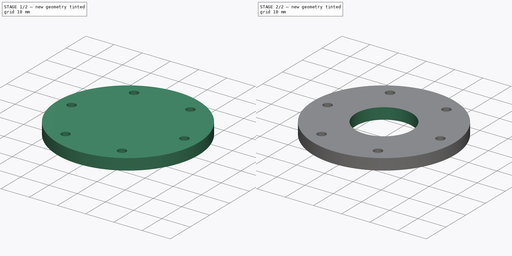
[diagram: build sequence overview — one tinted view per stage of 2, left to right]
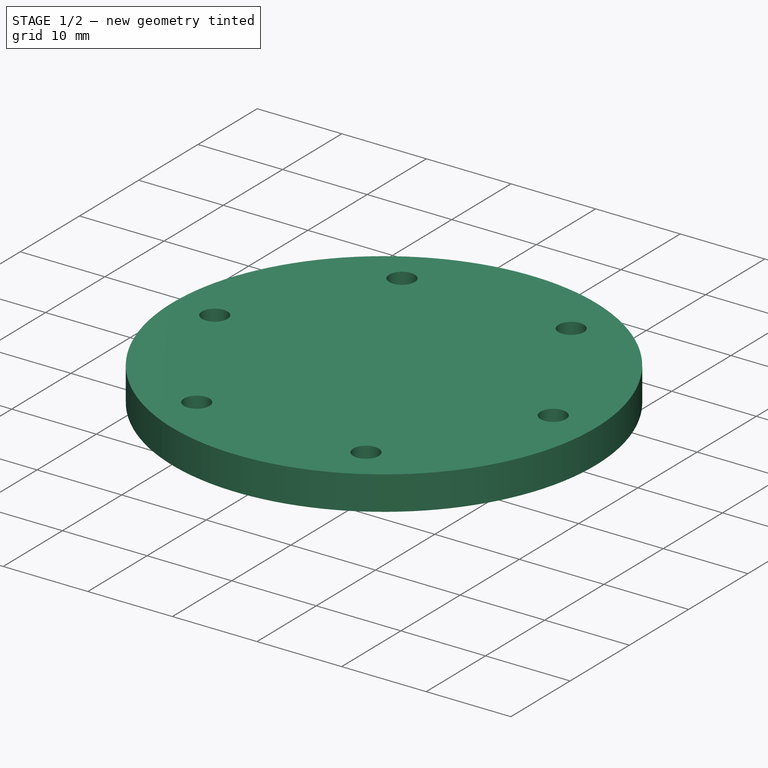
[diagram: stage 1 of 2 — iso view after this stage's code; geometry added in this stage tinted green]
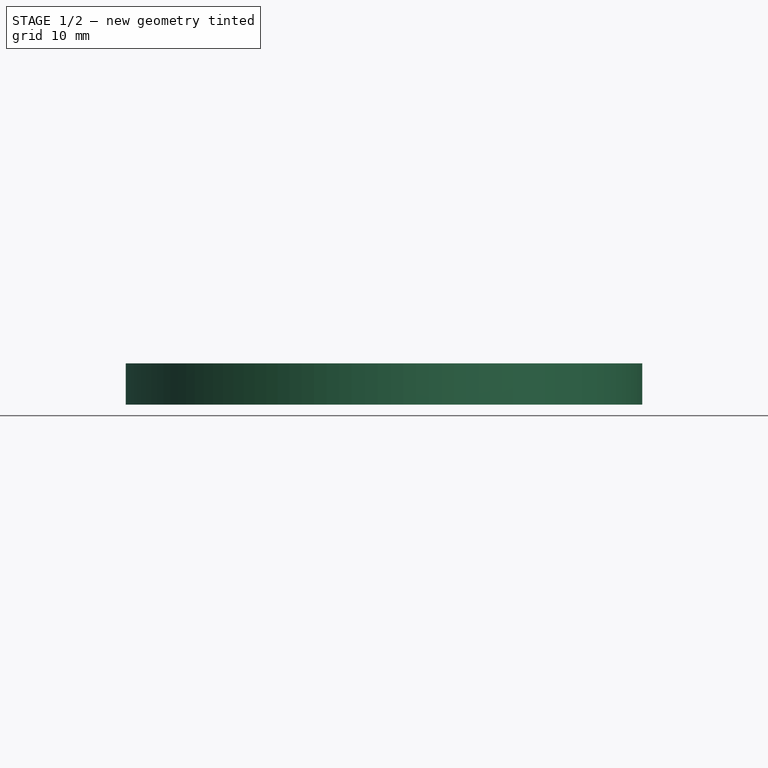
[diagram: stage 1 of 2 — front view after this stage's code; geometry added in this stage tinted green]
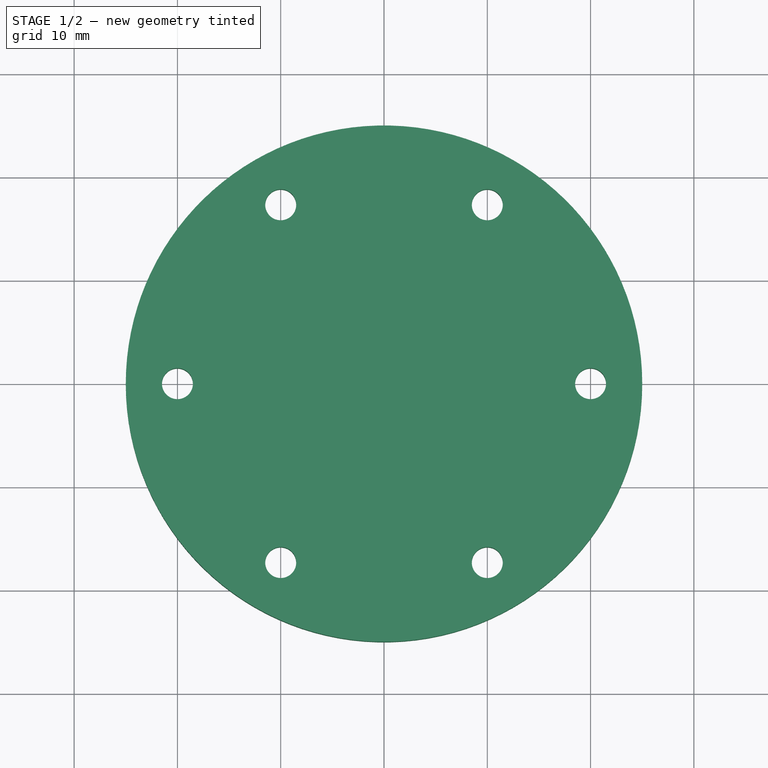
[diagram: stage 1 of 2 — top view after this stage's code; geometry added in this stage tinted green]
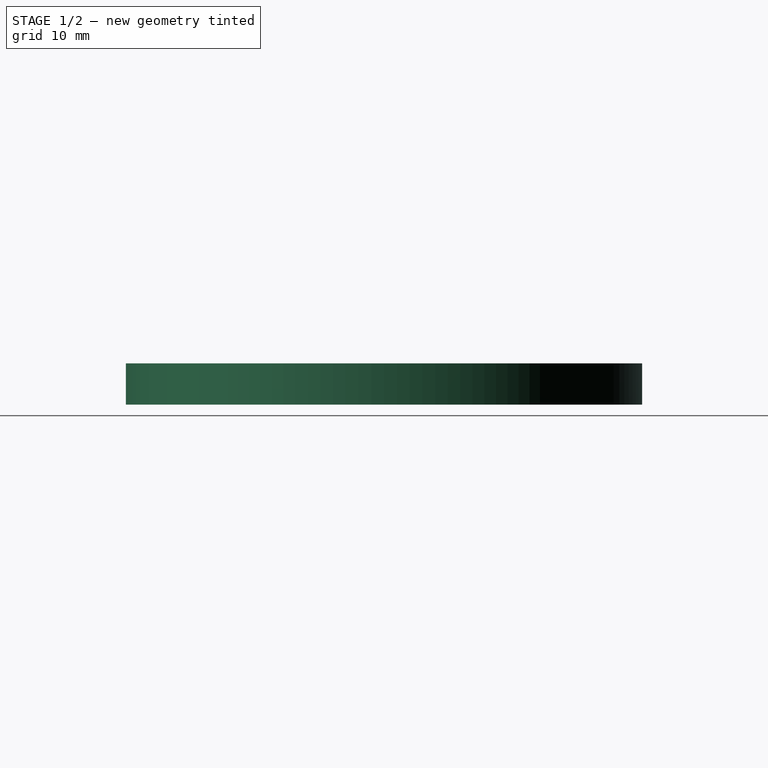
[diagram: stage 1 of 2 — right view after this stage's code; geometry added in this stage tinted green]
FCSTD DOCUMENT  (FreeCAD 0.16R6707 (Git))
Label: disque_haut
License: All rights reserved
LicenseURL: http://en.wikipedia.org/wiki/All_rights_reserved
objects: Sketcher::SketchObject×2, PartDesign::Pocket×2, Part::Cylinder×1, Drawing::FeatureViewPart×1, Drawing::FeaturePage×1
note: 7 computed .brp shape members not serialized (recipe doc carries the construction recipe); baked Part::Feature solids carry a one-line shape summary decoded from their .brp

FEATURE [Part::Cylinder] Cylinder  label="Cylindre"
  Angle = 360
  Height = 4
  Placement = pos=(0,0,2) rot=(0,0,1;0rad)
  Radius = 25
FEATURE [Sketcher::SketchObject] Sketch
  Placement = pos=(0,0,6) rot=(0,0,1;0rad)
  Support = -> Cylinder [Face2]
  sketch-geometry (12):
    g0: Circle CenterX=20 CenterY=0 CenterZ=0 NormalX=0 NormalY=0 NormalZ=1 Radius=1.5
    g1: Circle CenterX=-10 CenterY=17.3205 CenterZ=0 NormalX=0 NormalY=0 NormalZ=1 Radius=1.5
    g2: Circle CenterX=-10 CenterY=-17.3205 CenterZ=0 NormalX=0 NormalY=0 NormalZ=1 Radius=1.5
    g3: LineSegment [constr] StartX=0 StartY=0 StartZ=0 EndX=20 EndY=0 EndZ=0
    g4: LineSegment [constr] StartX=0 StartY=0 StartZ=0 EndX=-10 EndY=17.3205 EndZ=0
    g5: LineSegment [constr] StartX=-10 StartY=-17.3205 StartZ=0 EndX=0 EndY=0 EndZ=0
    g6: Circle CenterX=-20 CenterY=0 CenterZ=0 NormalX=0 NormalY=0 NormalZ=1 Radius=1.5
    g7: Circle CenterX=10 CenterY=-17.3205 CenterZ=0 NormalX=0 NormalY=0 NormalZ=1 Radius=1.5
    g8: LineSegment [constr] StartX=0 StartY=0 StartZ=0 EndX=10 EndY=17.3205 EndZ=0
    g9: LineSegment [constr] StartX=0 StartY=0 StartZ=0 EndX=-20 EndY=0 EndZ=0
    g10: LineSegment [constr] StartX=0 StartY=0 StartZ=0 EndX=10 EndY=-17.3205 EndZ=0
    g11: Circle CenterX=10 CenterY=17.3205 CenterZ=0 NormalX=0 NormalY=0 NormalZ=1 Radius=1.5
  constraints (30):
    c: Radius(g0) = 1.5
    c: Radius(g1) = 1.5
    c: Radius(g2) = 1.5
    c: Coincident(g3,g-1)
    c: Coincident(g3,g0)
    c: Horizontal(g3)
    c: Coincident(g4,g-1)
    c: Coincident(g4,g1)
    c: Coincident(g5,g2)
    c: Coincident(g5,g-1)
    c: Distance(g4) = 20
    c: Distance(g5) = 20
    c: Distance(g3) = 20
    c: Angle(g4) = 2.0944
    c: Angle(g5,g3) = 2.0944
    c: Coincident(g8,g-1)
    c: Coincident(g9,g-1)
    c: Coincident(g9,g6)
    c: Coincident(g10,g-1)
    c: Coincident(g10,g7)
    c: Coincident(g11,g8)
    c: Radius(g11) = 1.5
    c: Equal(g11,g6)
    c: Equal(g11,g7)
    c: Distance(g8) = 20
    c: Distance(g9) = 20
    c: Distance(g10) = 20
    c: Angle(g8) = 1.0472
    c: Angle(g8,g9) = 2.0944
    c: Angle(g10,g8) = 2.0944
FEATURE [PartDesign::Pocket] Pocket
  Length = 5
  Placement = pos=(0,0,2) rot=(0,0,1;0rad)
  Sketch = -> Sketch
  Type = 1
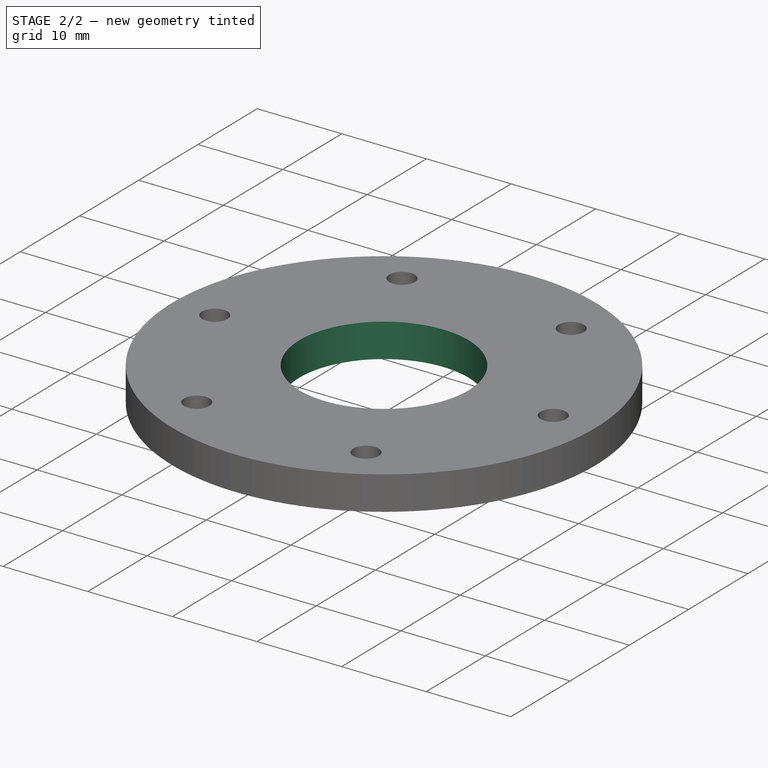
[diagram: stage 2 of 2 — iso view after this stage's code; geometry added in this stage tinted green]
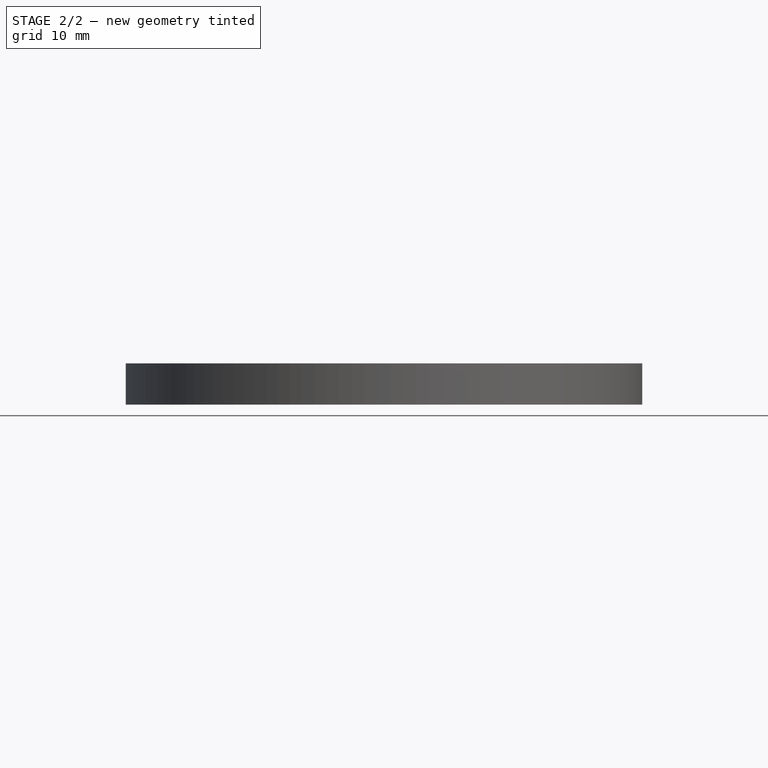
[diagram: stage 2 of 2 — front view after this stage's code; geometry added in this stage tinted green]
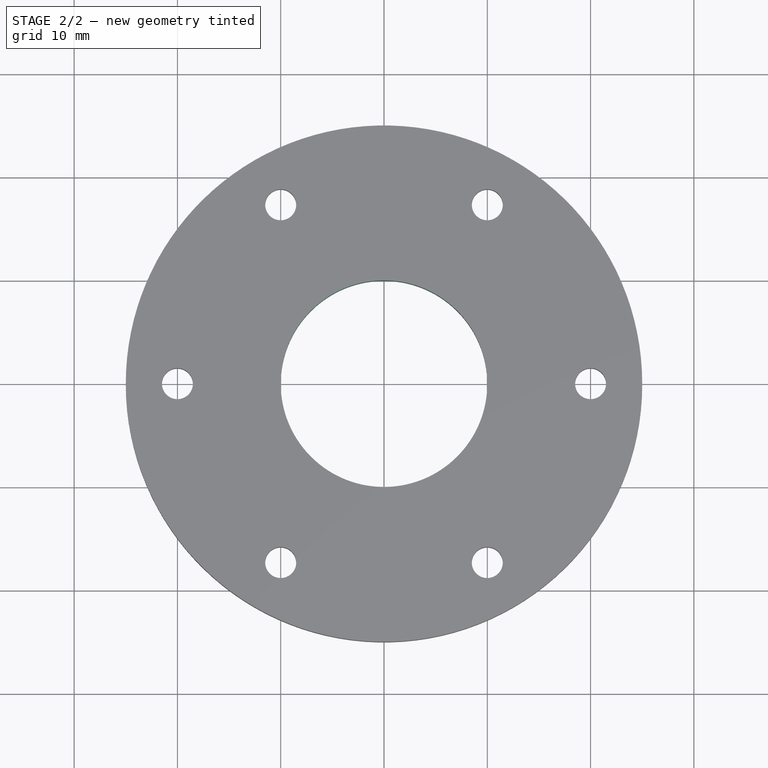
[diagram: stage 2 of 2 — top view after this stage's code; geometry added in this stage tinted green]
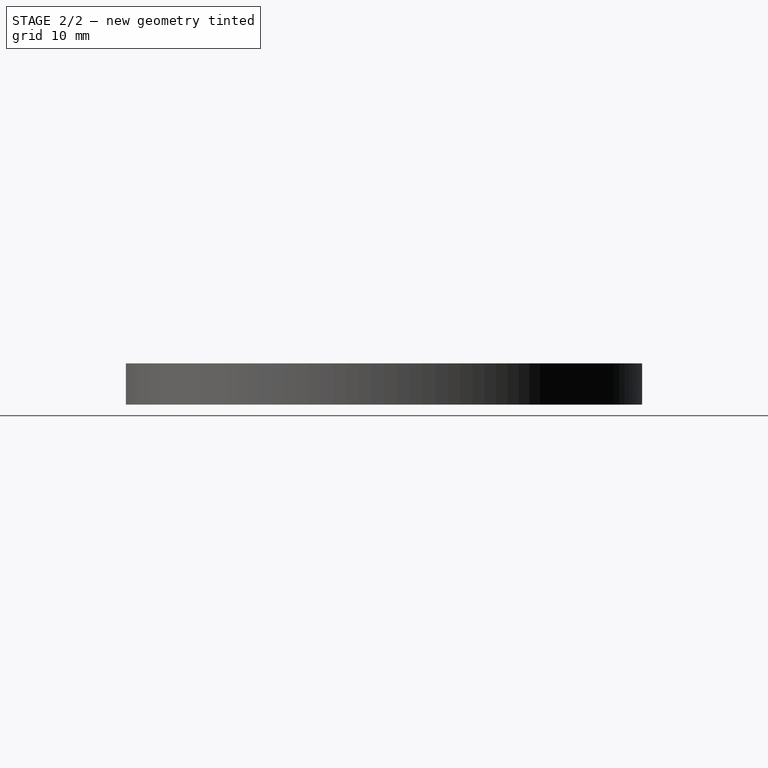
[diagram: stage 2 of 2 — right view after this stage's code; geometry added in this stage tinted green]
FEATURE [Sketcher::SketchObject] Sketch001
  Placement = pos=(0,0,6) rot=(0,0,1;0rad)
  Support = -> Pocket [Face2]
  sketch-geometry (1):
    g0: Circle CenterX=0 CenterY=0 CenterZ=0 NormalX=0 NormalY=0 NormalZ=1 Radius=10
  constraints (2):
    c: Coincident(g0,g-1)
    c: Radius(g0) = 10
FEATURE [PartDesign::Pocket] Pocket001
  Length = 5
  Placement = pos=(0,0,2) rot=(0,0,1;0rad)
  Sketch = -> Sketch001
  Type = 0
FEATURE [Drawing::FeatureViewPart] Ortho  label="Ortho_0_0"
  Direction = (0,0,1)
  HiddenWidth = 0.15
  LineWidth = 0.35
  Rotation = 0
  ShowHiddenLines = false
  ShowSmoothLines = false
  Source = -> Pocket001
  Tolerance = 0.05
  ViewResult = <g id="Ortho_0_0"\n   transform="rotate(0,210,118.5) translate(210,118.5) scale(1,1)"\n  >\n<g   stroke="rgb(0, 0, 0)"\n   stroke-width="0.35"\n   stroke-linecap="butt"\n   stroke-linejoin="miter"\n   fill="none"\n   transform="scale(1,-1)"\n  >\n<circle cx ="0" cy ="0" r ="25" /><circle cx ="-10" cy ="17.3205" r ="1.5" /><circle cx ="10" cy ="17.3205" r ="1.5" /><circle cx ="0" cy ="0" r ="10" /><circle cx ="10" cy ="-17.3205" r ="1.5" /><circle cx ="-10" cy ="-17.3205" r ="1.5" /><circle cx ="20" cy ="0" r ="1.5" /><circle cx ="-20" cy ="0" r ="1.5" /></g>\n</g>
  Visible = true
  X = 210
  Y = 118.5
FEATURE [Drawing::FeaturePage] Page
  EditableTexts = AUTHOR NAME | CREATION DATE | SUPERVISOR NAME | CHECK DATE | SCALE | WEIGHT | NUMBER | SHEET | TITLE | SUBTITLE
  Group = -> [Ortho]
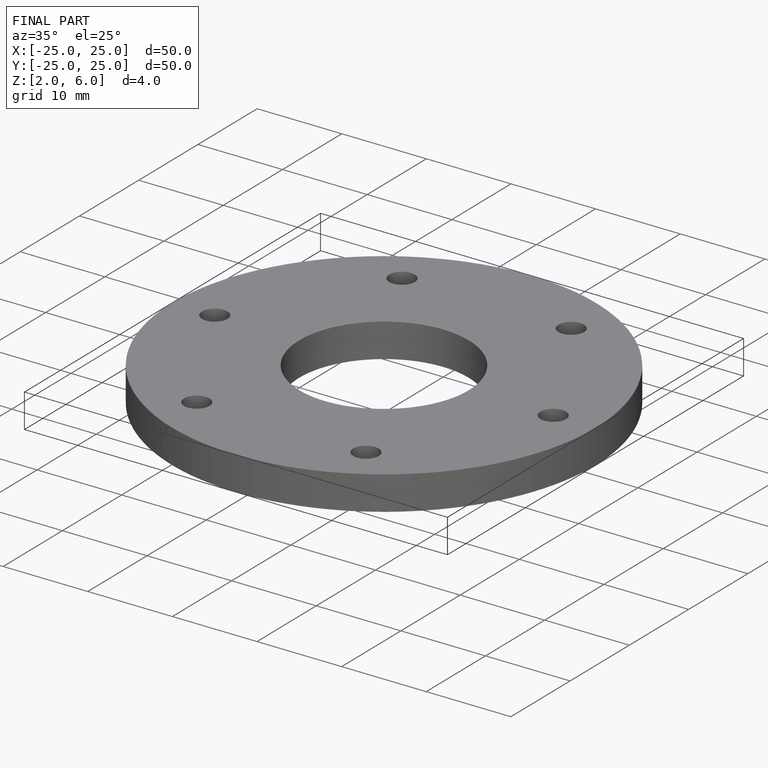
[diagram: finished part — iso view with bounding-box wireframe]
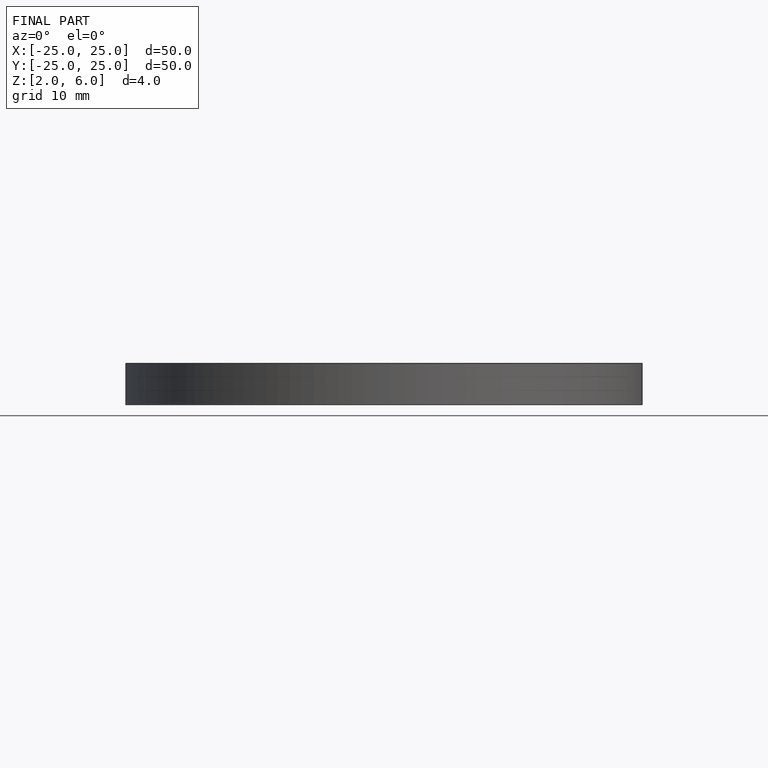
[diagram: finished part — front view with bounding-box wireframe]
